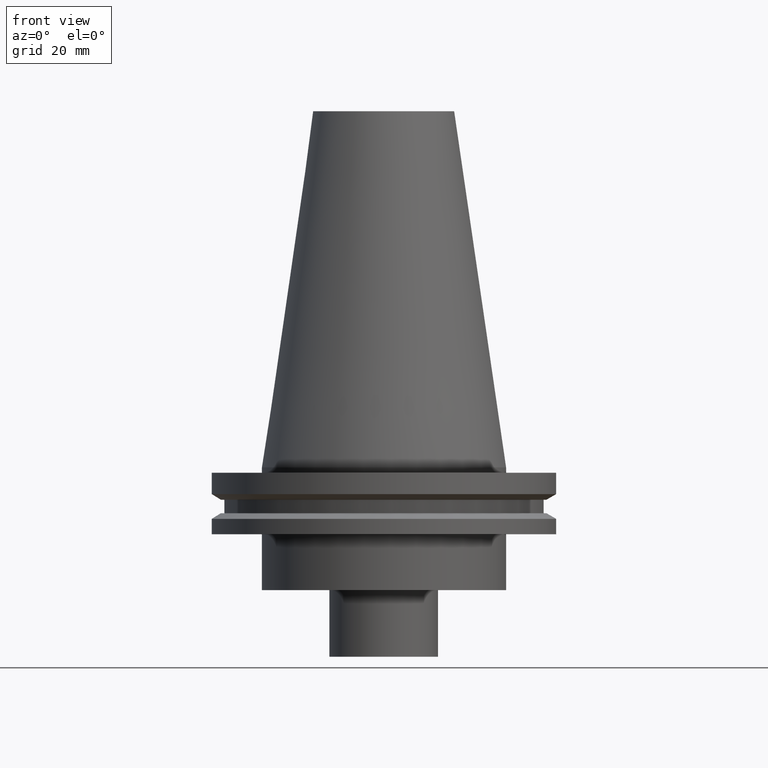
[diagram: clean part render]
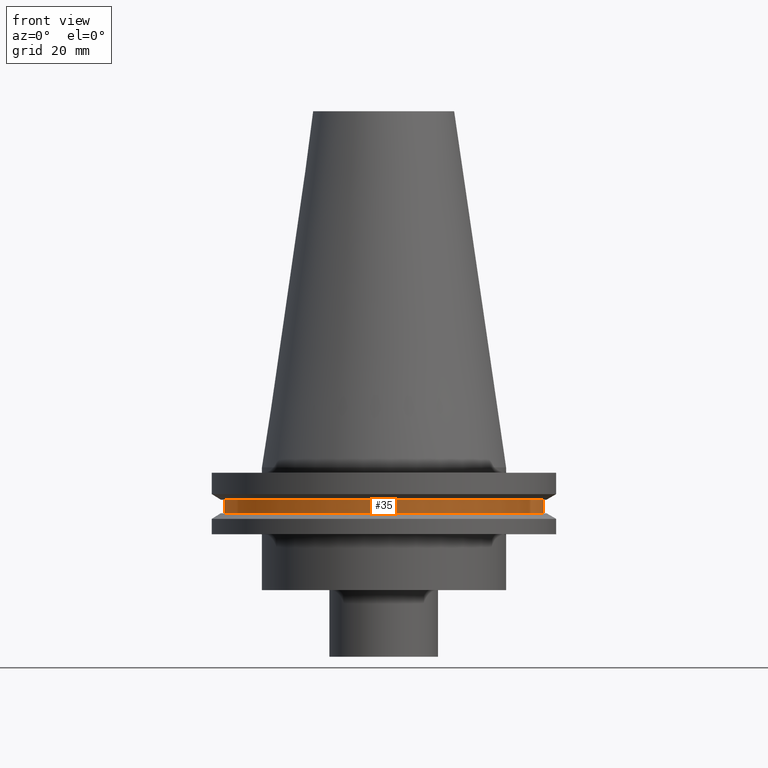
[diagram: same view with one face highlighted and labeled with its STEP entity id]
A machine part, front view. The second image highlights one B-rep face of the part: STEP entity #35.
In plain terms, the highlighted cylindrical surface (bore or boss wall) has radius 45.645 mm, axis along (-0, -0, 1).
Its self-contained STEP definition (entity closure, byte-faithful):
#16 = DIRECTION ( 'NONE',  ( -0.000000000000000000, -0.000000000000000000, 1.000000000000000000 ) ) ;
#18 = CARTESIAN_POINT ( 'NONE',  ( 45.64500000000000313, 0.000000000000000000, -9.204999999999991189 ) ) ;
#27 = EDGE_CURVE ( 'NONE', #386, #386, #108, .T. ) ;
#35 = ADVANCED_FACE ( 'NONE', ( #267, #243 ), #88, .T. ) ;
#57 = DIRECTION ( 'NONE',  ( 1.000000000000000000, 0.000000000000000000, 0.000000000000000000 ) ) ;
#76 = AXIS2_PLACEMENT_3D ( 'NONE', #184, #16, #362 ) ;
#87 = VERTEX_POINT ( 'NONE', #18 ) ;
#88 = CYLINDRICAL_SURFACE ( 'NONE', #252, 45.64500000000000313 ) ;
#104 = EDGE_CURVE ( 'NONE', #87, #87, #268, .T. ) ;
#108 = CIRCLE ( 'NONE', #76, 45.64500000000000313 ) ;
#112 = CARTESIAN_POINT ( 'NONE',  ( 45.64500000000000313, 0.000000000000000000, -13.05499999999999794 ) ) ;
#144 = CARTESIAN_POINT ( 'NONE',  ( 0.000000000000000000, 0.000000000000000000, 101.5999999999999943 ) ) ;
#184 = CARTESIAN_POINT ( 'NONE',  ( 0.000000000000000000, 0.000000000000000000, -13.05499999999999794 ) ) ;
#189 = DIRECTION ( 'NONE',  ( 1.000000000000000000, 0.000000000000000000, 0.000000000000000000 ) ) ;
#192 = AXIS2_PLACEMENT_3D ( 'NONE', #249, #303, #189 ) ;
#243 = FACE_OUTER_BOUND ( 'NONE', #300, .T. ) ;
#249 = CARTESIAN_POINT ( 'NONE',  ( 0.000000000000000000, 0.000000000000000000, -9.204999999999991189 ) ) ;
#252 = AXIS2_PLACEMENT_3D ( 'NONE', #144, #392, #57 ) ;
#260 = EDGE_LOOP ( 'NONE', ( #331 ) ) ;
#267 = FACE_OUTER_BOUND ( 'NONE', #260, .T. ) ;
#268 = CIRCLE ( 'NONE', #192, 45.64500000000000313 ) ;
#300 = EDGE_LOOP ( 'NONE', ( #380 ) ) ;
#303 = DIRECTION ( 'NONE',  ( -0.000000000000000000, -0.000000000000000000, 1.000000000000000000 ) ) ;
#331 = ORIENTED_EDGE ( 'NONE', *, *, #104, .F. ) ;
#362 = DIRECTION ( 'NONE',  ( 1.000000000000000000, 0.000000000000000000, 0.000000000000000000 ) ) ;
#380 = ORIENTED_EDGE ( 'NONE', *, *, #27, .T. ) ;
#386 = VERTEX_POINT ( 'NONE', #112 ) ;
#392 = DIRECTION ( 'NONE',  ( -0.000000000000000000, -0.000000000000000000, 1.000000000000000000 ) ) ;